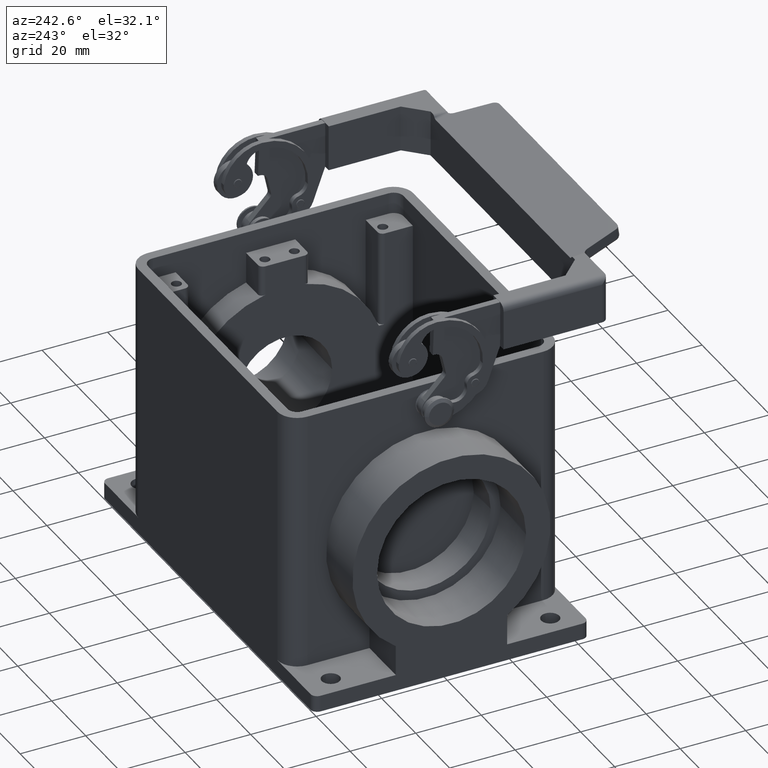
[diagram: clean part render]
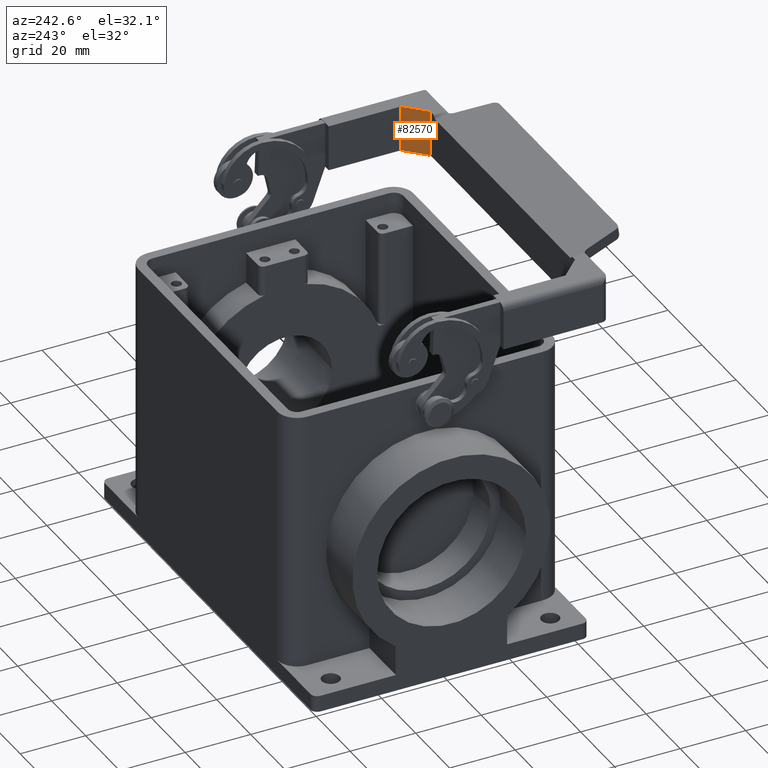
[diagram: same view with one face highlighted and labeled with its STEP entity id]
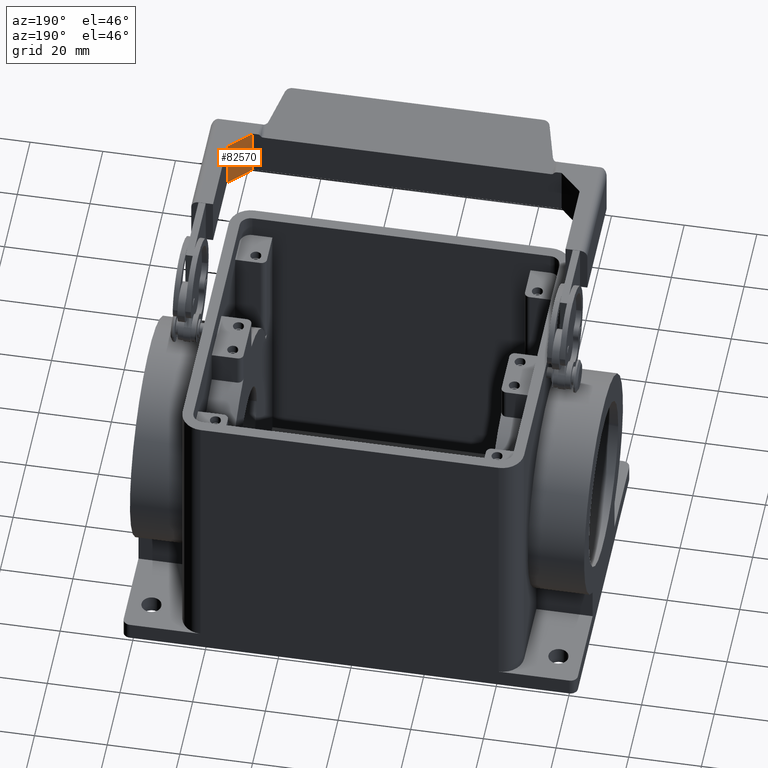
[diagram: same view with one face highlighted and labeled with its STEP entity id]
A machine part, auxiliary view. The second image highlights one B-rep face of the part: STEP entity #82570.
A second angle (auxiliary view) of the same face is appended — the face is thin or edge-on in the first view.
In plain terms, the highlighted planar face has unit normal (-0.7071, 0.7071, 0).
Its self-contained STEP definition (entity closure, byte-faithful):
#56600=CARTESIAN_POINT('',(42.5,-48.05,53.));
#56610=VERTEX_POINT('',#56600);
#56640=CARTESIAN_POINT('',(90.55,0.,53.));
#56650=DIRECTION('',(-0.707106781186548,-0.707106781186548,0.));
#56660=VECTOR('',#56650,1.);
#56670=LINE('',#56640,#56660);
#56680=CARTESIAN_POINT('',(48.5,-42.05,53.));
#56690=VERTEX_POINT('',#56680);
#56700=EDGE_CURVE('',#56690,#56610,#56670,.T.);
#64720=CARTESIAN_POINT('',(42.5,-48.05,39.));
#64730=VERTEX_POINT('',#64720);
#64760=CARTESIAN_POINT('',(42.5,-48.05,0.));
#64770=DIRECTION('',(0.,0.,1.));
#64780=VECTOR('',#64770,1.);
#64790=LINE('',#64760,#64780);
#64800=EDGE_CURVE('',#64730,#56610,#64790,.T.);
#82030=CARTESIAN_POINT('',(48.5,-42.05,39.));
#82040=VERTEX_POINT('',#82030);
#82070=CARTESIAN_POINT('',(90.55,0.,39.));
#82080=DIRECTION('',(0.707106781186548,0.707106781186548,0.));
#82090=VECTOR('',#82080,1.);
#82100=LINE('',#82070,#82090);
#82110=EDGE_CURVE('',#64730,#82040,#82100,.T.);
#82410=CARTESIAN_POINT('',(48.5,-42.05,53.));
#82420=DIRECTION('',(-0.707106781186548,0.707106781186548,0.));
#82430=DIRECTION('',(0.707106781186548,0.707106781186548,0.));
#82440=AXIS2_PLACEMENT_3D('',#82410,#82420,#82430);
#82450=PLANE('',#82440);
#82460=CARTESIAN_POINT('',(48.5,-42.05,0.));
#82470=DIRECTION('',(0.,0.,1.));
#82480=VECTOR('',#82470,1.);
#82490=LINE('',#82460,#82480);
#82500=EDGE_CURVE('',#82040,#56690,#82490,.T.);
#82510=ORIENTED_EDGE('',*,*,#82500,.F.);
#82520=ORIENTED_EDGE('',*,*,#56700,.F.);
#82530=ORIENTED_EDGE('',*,*,#64800,.T.);
#82540=ORIENTED_EDGE('',*,*,#82110,.F.);
#82550=EDGE_LOOP('',(#82540,#82530,#82520,#82510));
#82560=FACE_OUTER_BOUND('',#82550,.T.);
#82570=ADVANCED_FACE('',(#82560),#82450,.T.);